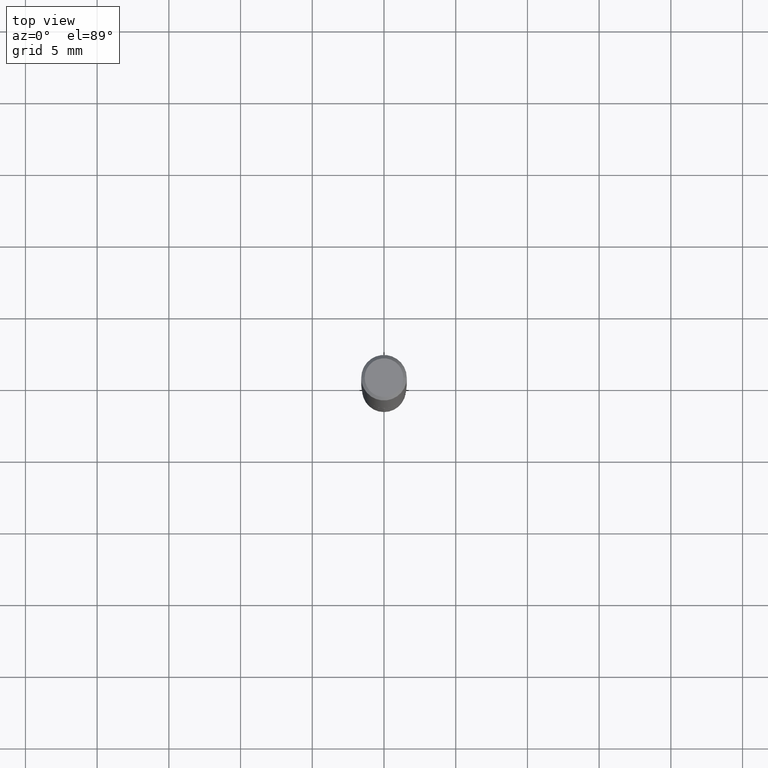
[diagram: clean part render]
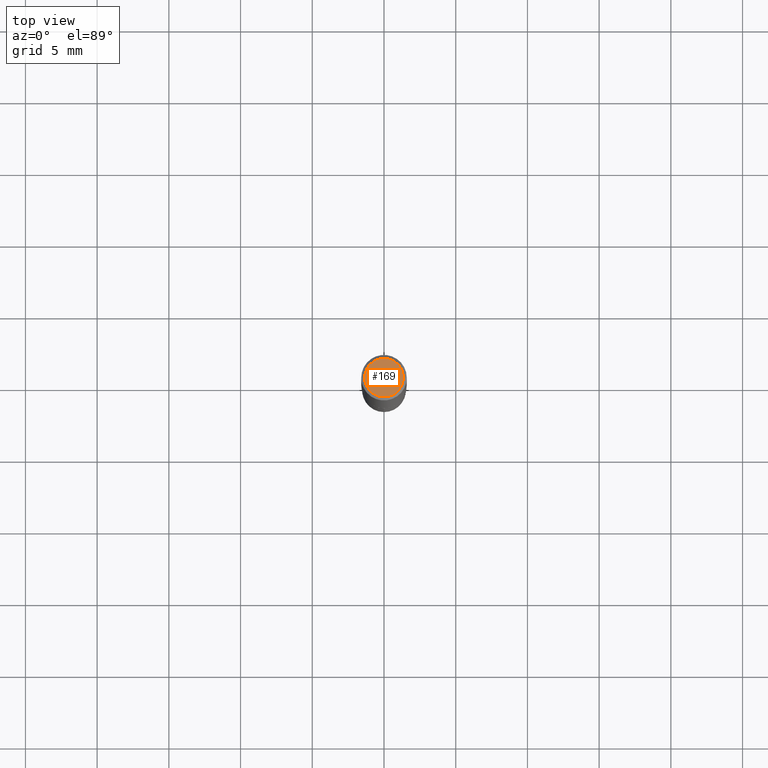
[diagram: same view with one face highlighted and labeled with its STEP entity id]
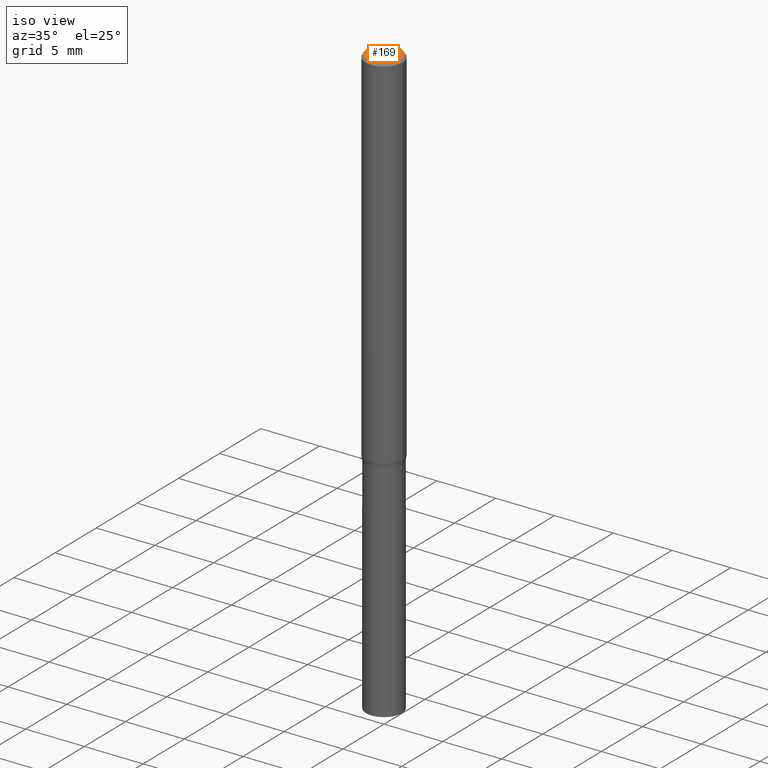
[diagram: same view with one face highlighted and labeled with its STEP entity id]
A machine part, top view. The second image highlights one B-rep face of the part: STEP entity #169.
A second angle (iso view) of the same face is appended — the face is thin or edge-on in the first view.
In plain terms, the highlighted planar face has unit normal (0, -0, -1).
Its self-contained STEP definition (entity closure, byte-faithful):
#2 = DIRECTION ( 'NONE',  ( -2.445468806185136597E-29, 3.491481338843145583E-15, 1.000000000000000000 ) ) ;
#7 = DIRECTION ( 'NONE',  ( -1.000000000000000000, 6.982962677686265922E-15, -4.876176775795935793E-29 ) ) ;
#27 = PLANE ( 'NONE',  #74 ) ;
#29 = DIRECTION ( 'NONE',  ( -2.445468806185136597E-29, 3.491481338843145583E-15, 1.000000000000000000 ) ) ;
#74 = AXIS2_PLACEMENT_3D ( 'NONE', #176, #406, #7 ) ;
#90 = VERTEX_POINT ( 'NONE', #131 ) ;
#101 = CIRCLE ( 'NONE', #490, 0.05312499999999999861 ) ;
#111 = CARTESIAN_POINT ( 'NONE',  ( 9.546038302585977863E-46, -1.362921273379660165E-31, -3.903561672282188024E-17 ) ) ;
#131 = CARTESIAN_POINT ( 'NONE',  ( 0.05312499999999999861, -4.129888592719941322E-16, -3.903561672281913772E-17 ) ) ;
#139 = CARTESIAN_POINT ( 'NONE',  ( -0.05312499999999999861, 3.873362110279098601E-16, -3.903561672282453649E-17 ) ) ;
#157 = EDGE_LOOP ( 'NONE', ( #396, #240 ) ) ;
#169 = ADVANCED_FACE ( 'NONE', ( #241 ), #27, .F. ) ;
#172 = AXIS2_PLACEMENT_3D ( 'NONE', #111, #2, #222 ) ;
#176 = CARTESIAN_POINT ( 'NONE',  ( 4.773019151292988932E-46, -6.814606366898300824E-32, -1.951780836141094012E-17 ) ) ;
#222 = DIRECTION ( 'NONE',  ( 1.000000000000000000, -6.982962677686266711E-15, 4.881282378734115390E-29 ) ) ;
#240 = ORIENTED_EDGE ( 'NONE', *, *, #360, .T. ) ;
#241 = FACE_OUTER_BOUND ( 'NONE', #157, .T. ) ;
#360 = EDGE_CURVE ( 'NONE', #90, #365, #101, .T. ) ;
#365 = VERTEX_POINT ( 'NONE', #139 ) ;
#396 = ORIENTED_EDGE ( 'NONE', *, *, #401, .T. ) ;
#401 = EDGE_CURVE ( 'NONE', #365, #90, #460, .T. ) ;
#406 = DIRECTION ( 'NONE',  ( 2.438088387897960049E-29, -3.491481338843145188E-15, -1.000000000000000000 ) ) ;
#453 = DIRECTION ( 'NONE',  ( 1.000000000000000000, -6.982962677686266711E-15, 4.881282378734115390E-29 ) ) ;
#454 = CARTESIAN_POINT ( 'NONE',  ( 9.546038302585977863E-46, -1.362921273379660165E-31, -3.903561672282188024E-17 ) ) ;
#460 = CIRCLE ( 'NONE', #172, 0.05312499999999999861 ) ;
#490 = AXIS2_PLACEMENT_3D ( 'NONE', #454, #29, #453 ) ;